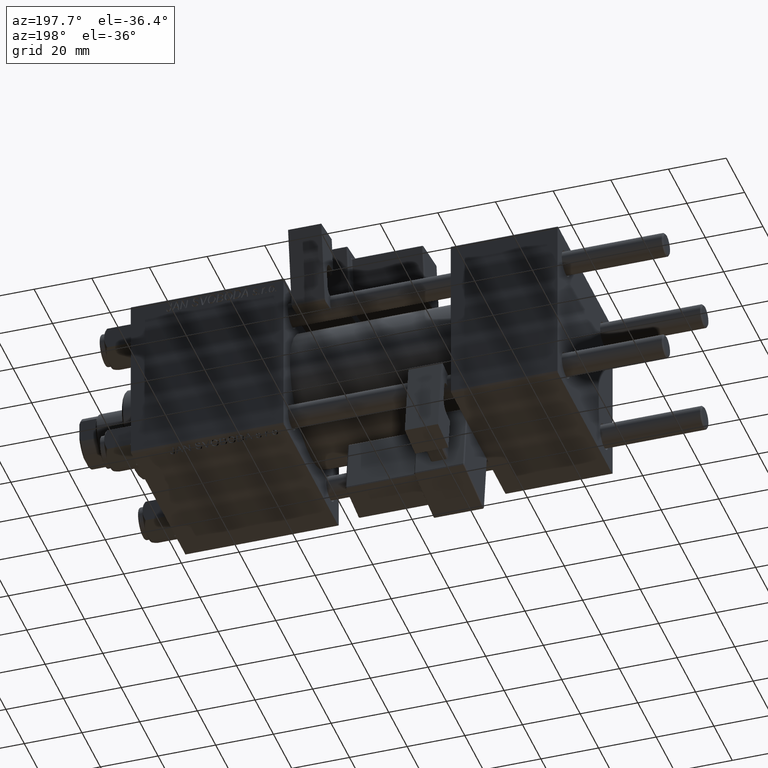
[diagram: clean part render]
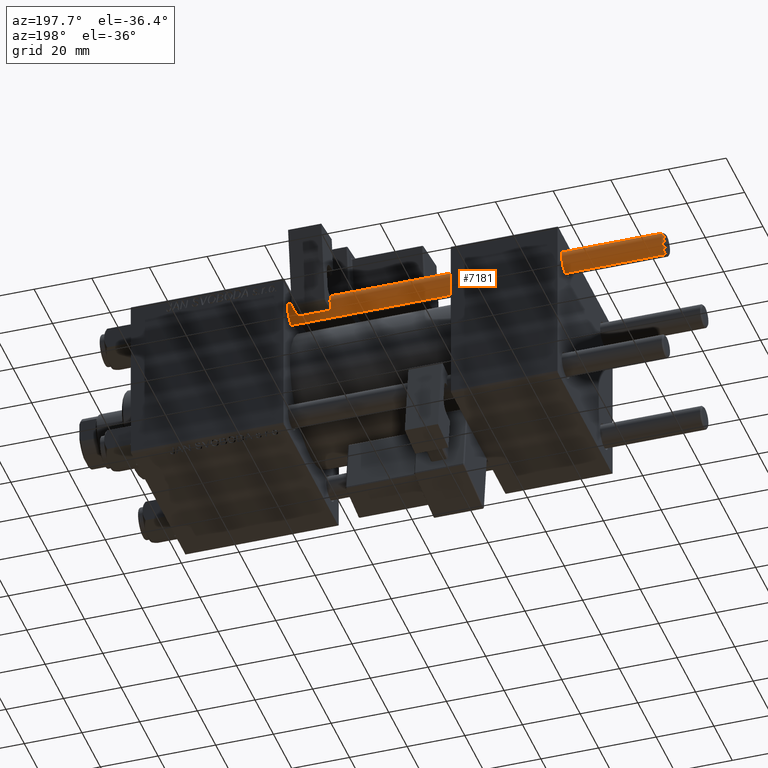
[diagram: same view with one face highlighted and labeled with its STEP entity id]
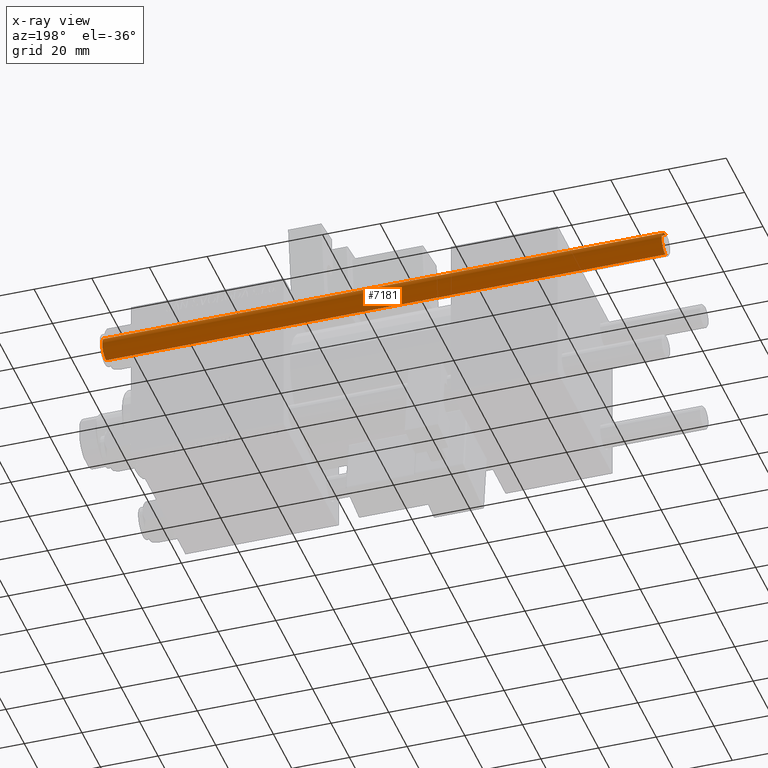
[diagram: x-ray of the same camera — body ghosted, the highlighted face saturated]
A machine part, auxiliary view. The second image highlights one B-rep face of the part: STEP entity #7181.
The next image is the same camera in x-ray: the body ghosted, the highlighted face saturated — about 0% of this face is hidden behind the body in this view.
In plain terms, the highlighted cylindrical surface (edge-blend (fillet) strip) has radius 4 mm, axis along (-1, -0, -0).
Its self-contained STEP definition (entity closure, byte-faithful):
#1050 = CARTESIAN_POINT ( 'NONE',  ( 4.000000000000000000, 4.898587196589412829E-16, 0.5000000000000004441 ) ) ;
#3989 = EDGE_CURVE ( 'NONE', #17823, #35842, #10922, .T. ) ;
#5807 = DIRECTION ( 'NONE',  ( -0.000000000000000000, -0.000000000000000000, 1.000000000000000000 ) ) ;
#7057 = DIRECTION ( 'NONE',  ( -0.000000000000000000, -0.000000000000000000, -1.000000000000000000 ) ) ;
#7181 = ADVANCED_FACE ( 'NONE', ( #11004 ), #27059, .T. ) ;
#7627 = CARTESIAN_POINT ( 'NONE',  ( -4.000000000000000000, 0.000000000000000000, 0.5000000000000004441 ) ) ;
#9504 = DIRECTION ( 'NONE',  ( 1.000000000000000000, 0.000000000000000000, 0.000000000000000000 ) ) ;
#10922 = LINE ( 'NONE', #26971, #11043 ) ;
#11004 = FACE_OUTER_BOUND ( 'NONE', #12354, .T. ) ;
#11043 = VECTOR ( 'NONE', #19094, 1000.000000000000000 ) ;
#12354 = EDGE_LOOP ( 'NONE', ( #35469, #19746, #44096, #50208 ) ) ;
#12825 = AXIS2_PLACEMENT_3D ( 'NONE', #43123, #7057, #23119 ) ;
#13317 = CARTESIAN_POINT ( 'NONE',  ( 4.000000000000000000, 4.898587196589412829E-16, 194.5000000000000568 ) ) ;
#14275 = DIRECTION ( 'NONE',  ( 0.000000000000000000, 0.000000000000000000, -1.000000000000000000 ) ) ;
#14801 = DIRECTION ( 'NONE',  ( 1.000000000000000000, 0.000000000000000000, 0.000000000000000000 ) ) ;
#16359 = CARTESIAN_POINT ( 'NONE',  ( -4.000000000000000000, 0.000000000000000000, 195.0000000000000000 ) ) ;
#17823 = VERTEX_POINT ( 'NONE', #13317 ) ;
#18102 = VERTEX_POINT ( 'NONE', #7627 ) ;
#19094 = DIRECTION ( 'NONE',  ( -0.000000000000000000, -0.000000000000000000, -1.000000000000000000 ) ) ;
#19746 = ORIENTED_EDGE ( 'NONE', *, *, #3989, .T. ) ;
#20822 = DIRECTION ( 'NONE',  ( -0.000000000000000000, -0.000000000000000000, -1.000000000000000000 ) ) ;
#23119 = DIRECTION ( 'NONE',  ( -1.000000000000000000, 0.000000000000000000, 0.000000000000000000 ) ) ;
#23201 = AXIS2_PLACEMENT_3D ( 'NONE', #41356, #5807, #9504 ) ;
#25695 = CIRCLE ( 'NONE', #23201, 4.000000000000000000 ) ;
#26971 = CARTESIAN_POINT ( 'NONE',  ( 4.000000000000000000, 4.898587196589412829E-16, 195.0000000000000000 ) ) ;
#27059 = CYLINDRICAL_SURFACE ( 'NONE', #12825, 4.000000000000000000 ) ;
#27923 = AXIS2_PLACEMENT_3D ( 'NONE', #30078, #14275, #14801 ) ;
#28830 = VERTEX_POINT ( 'NONE', #45354 ) ;
#29021 = EDGE_CURVE ( 'NONE', #28830, #17823, #32091, .T. ) ;
#30078 = CARTESIAN_POINT ( 'NONE',  ( 0.000000000000000000, 0.000000000000000000, 194.5000000000000568 ) ) ;
#32091 = CIRCLE ( 'NONE', #27923, 4.000000000000000000 ) ;
#35469 = ORIENTED_EDGE ( 'NONE', *, *, #29021, .T. ) ;
#35842 = VERTEX_POINT ( 'NONE', #1050 ) ;
#37936 = EDGE_CURVE ( 'NONE', #28830, #18102, #40561, .T. ) ;
#40561 = LINE ( 'NONE', #16359, #42093 ) ;
#41356 = CARTESIAN_POINT ( 'NONE',  ( 0.000000000000000000, 0.000000000000000000, 0.5000000000000004441 ) ) ;
#42093 = VECTOR ( 'NONE', #20822, 1000.000000000000000 ) ;
#43123 = CARTESIAN_POINT ( 'NONE',  ( 0.000000000000000000, 0.000000000000000000, 195.0000000000000000 ) ) ;
#44096 = ORIENTED_EDGE ( 'NONE', *, *, #49299, .T. ) ;
#45354 = CARTESIAN_POINT ( 'NONE',  ( -4.000000000000000000, 0.000000000000000000, 194.5000000000000568 ) ) ;
#49299 = EDGE_CURVE ( 'NONE', #35842, #18102, #25695, .T. ) ;
#50208 = ORIENTED_EDGE ( 'NONE', *, *, #37936, .F. ) ;